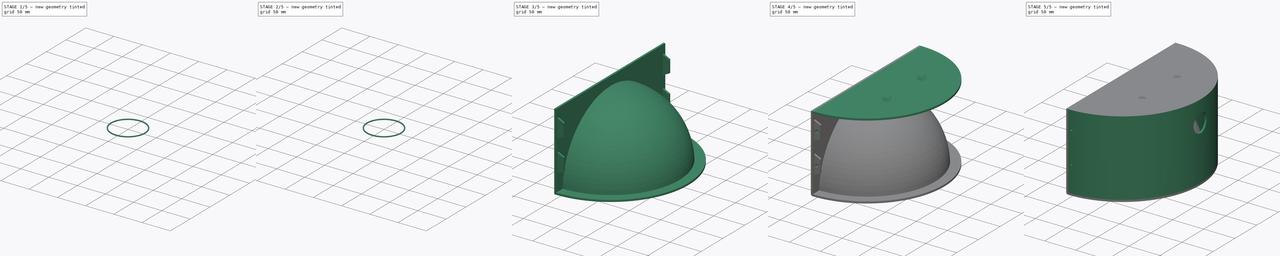
[diagram: build sequence overview — one tinted view per stage of 5, left to right]
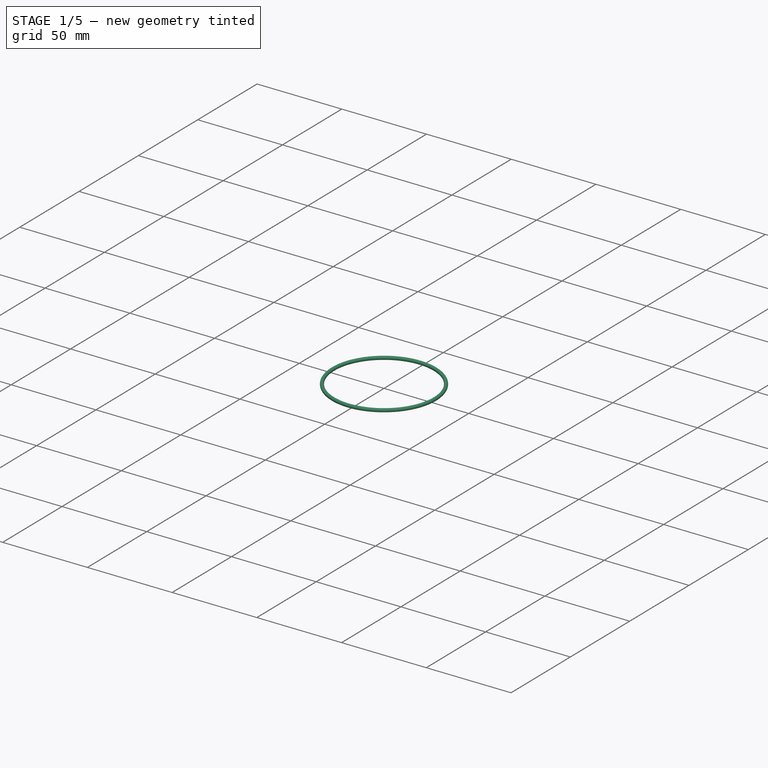
[diagram: stage 1 of 5 — iso view after this stage's code; geometry added in this stage tinted green]
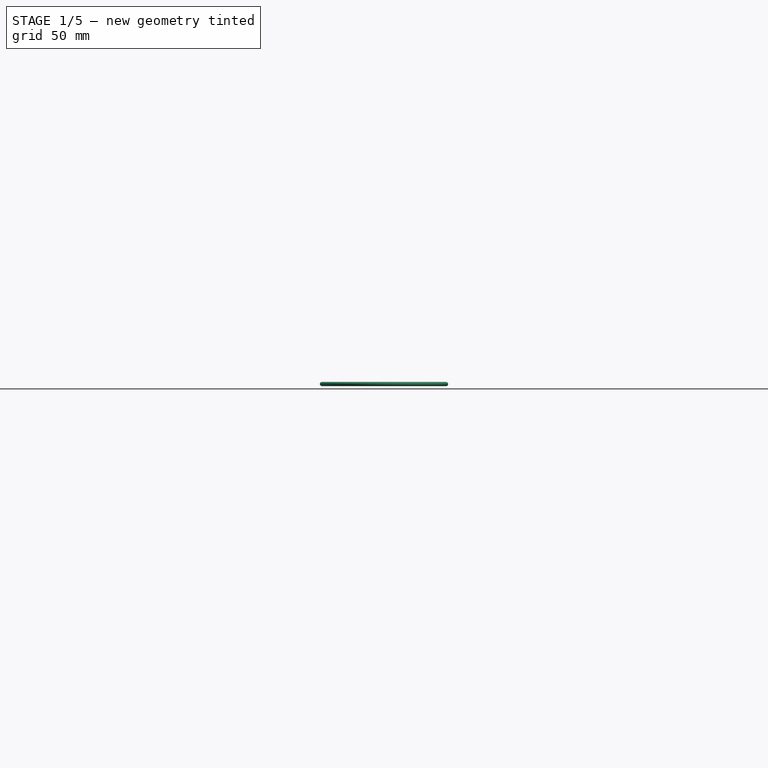
[diagram: stage 1 of 5 — front view after this stage's code; geometry added in this stage tinted green]
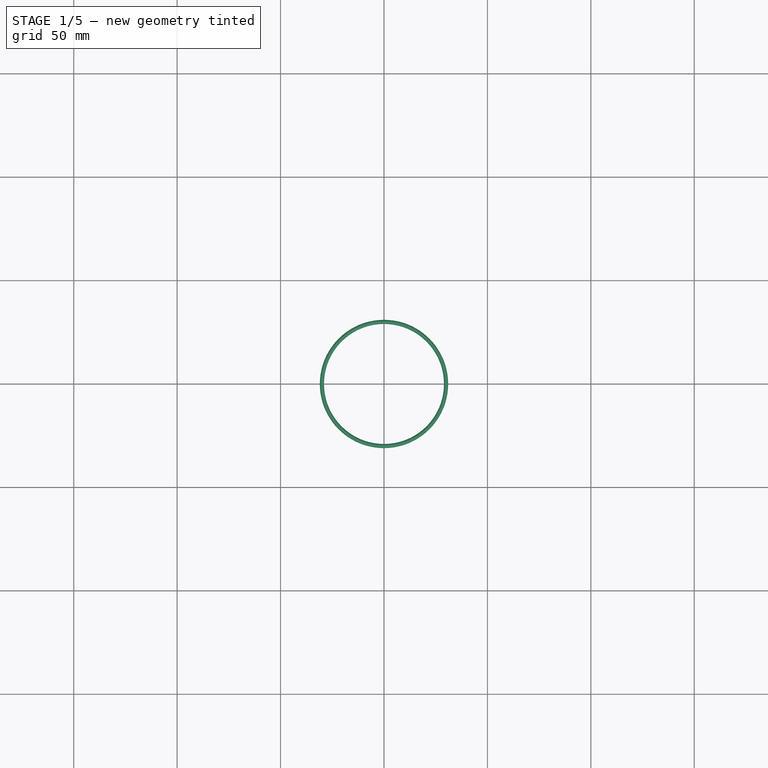
[diagram: stage 1 of 5 — top view after this stage's code; geometry added in this stage tinted green]
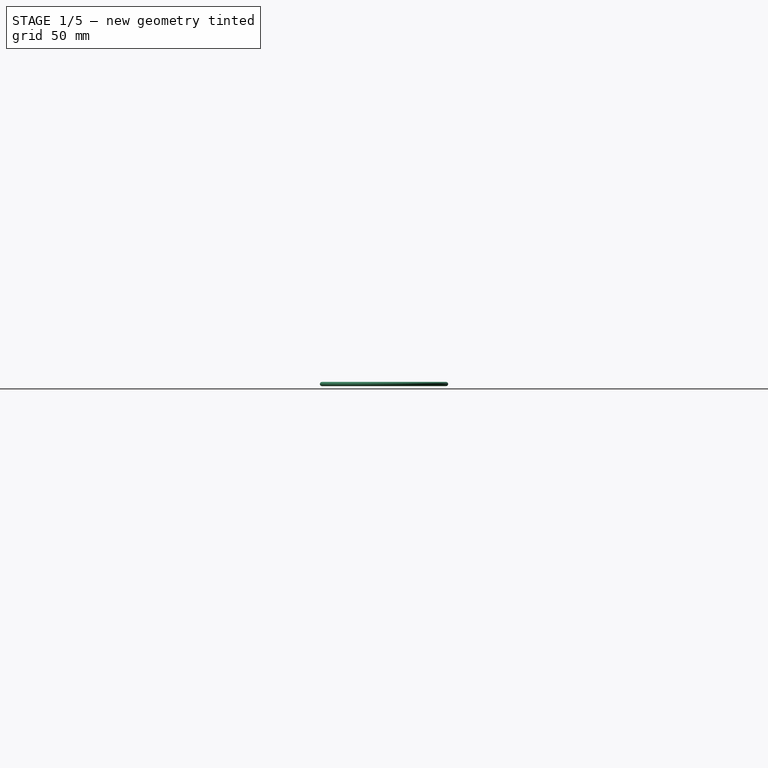
[diagram: stage 1 of 5 — right view after this stage's code; geometry added in this stage tinted green]
FCSTD DOCUMENT  (FreeCAD 0.19R24291 (Git))
Label: tms_v5_with_loops
License: All rights reserved
LicenseURL: http://en.wikipedia.org/wiki/All_rights_reserved
objects: Sketcher::SketchObject×44, PartDesign::Body×18, PartDesign::AdditivePipe×16, PartDesign::Pad×6, PartDesign::Pocket×4, PartDesign::Mirrored×3, PartDesign::Chamfer×2, Part::FeaturePython×2, PartDesign::Fillet×2, PartDesign::Revolution×1, PartDesign::Groove×1, Part::MultiFuse×1, Part::Cut×1
note: 133 computed .brp shape members not serialized (recipe doc carries the construction recipe); baked Part::Feature solids carry a one-line shape summary decoded from their .brp

FEATURE [PartDesign::Body] Body009  label="loop6cm007"
  Group = -> [Sketch037,Sketch036,AdditivePipe007]
  Origin = -> Origin009
  Placement = pos=(75.251,48.3806,74.052) rot=(0.200696,0.329112,0.922717;2.23262rad)
  Tip = -> AdditivePipe007
FEATURE [Sketcher::SketchObject] Sketch038
  FullyConstrained = true
  MapMode = 5
  Placement = pos=(0,0,0) rot=(1,0,0;1.5708rad)
  Support = -> [XZ_Plane010]
  sketch-geometry (1):
    g0: Circle CenterX=30 CenterY=0 CenterZ=0 NormalX=0 NormalY=0 NormalZ=1 AngleXU=0 Radius=1
  constraints (3):
    c: PointOnObject(g0,g-1)
    c: Radius(g0) = 1
    c: DistanceX(g-1,g0) = 30
FEATURE [Sketcher::SketchObject] Sketch039
  FullyConstrained = true
  MapMode = 5
  Support = -> [XY_Plane010]
  sketch-geometry (1):
    g0: Circle CenterX=0 CenterY=0 CenterZ=0 NormalX=0 NormalY=0 NormalZ=1 AngleXU=0 Radius=30
  constraints (2):
    c: Coincident(g0,g-1)
    c: Radius(g0) = 30
FEATURE [PartDesign::AdditivePipe] AdditivePipe008
  AuxilleryCurvelinear = true
  AuxillerySpineTangent = false
  Binormal = (0,0,0)
  Mode = 0
  Placement = pos=(0,0,0) rot=(1,0,0;1.5708rad)
  Profile = -> Sketch038
  Refine = true
  Spine = -> Sketch039 [Edge1]
  SpineTangent = false
  Transformation = 0
  Transition = 0
FEATURE [PartDesign::Body] Body010  label="loop6cm008"
  Group = -> [Sketch039,Sketch038,AdditivePipe008]
  Origin = -> Origin010
  Placement = pos=(87.9903,0.762814,73.1651) rot=(0.258364,0.311684,0.914386;1.73504rad)
  Tip = -> AdditivePipe008
FEATURE [Sketcher::SketchObject] Sketch040
  FullyConstrained = true
  MapMode = 5
  Placement = pos=(0,0,0) rot=(1,0,0;1.5708rad)
  Support = -> [XZ_Plane011]
  sketch-geometry (1):
    g0: Circle CenterX=30 CenterY=0 CenterZ=0 NormalX=0 NormalY=0 NormalZ=1 AngleXU=0 Radius=1
  constraints (3):
    c: PointOnObject(g0,g-1)
    c: Radius(g0) = 1
    c: DistanceX(g-1,g0) = 30
FEATURE [Sketcher::SketchObject] Sketch041
  FullyConstrained = true
  MapMode = 5
  Support = -> [XY_Plane011]
  sketch-geometry (1):
    g0: Circle CenterX=0 CenterY=0 CenterZ=0 NormalX=0 NormalY=0 NormalZ=1 AngleXU=0 Radius=30
  constraints (2):
    c: Coincident(g0,g-1)
    c: Radius(g0) = 30
FEATURE [PartDesign::AdditivePipe] AdditivePipe009
  AuxilleryCurvelinear = true
  AuxillerySpineTangent = false
  Binormal = (0,0,0)
  Mode = 0
  Placement = pos=(0,0,0) rot=(1,0,0;1.5708rad)
  Profile = -> Sketch040
  Refine = true
  Spine = -> Sketch041 [Edge1]
  SpineTangent = false
  Transformation = 0
  Transition = 0
FEATURE [PartDesign::Body] Body011  label="loop6cm009"
  Group = -> [Sketch041,Sketch040,AdditivePipe009]
  Origin = -> Origin011
  Placement = pos=(71.4617,-45.2874,76.0526) rot=(0.593103,0.246322,0.766521;1.1852rad)
  Tip = -> AdditivePipe009
FEATURE [Sketcher::SketchObject] Sketch042
  FullyConstrained = true
  MapMode = 5
  Placement = pos=(0,0,0) rot=(1,0,0;1.5708rad)
  Support = -> [XZ_Plane012]
  sketch-geometry (1):
    g0: Circle CenterX=30 CenterY=0 CenterZ=0 NormalX=0 NormalY=0 NormalZ=1 AngleXU=0 Radius=1
  constraints (3):
    c: PointOnObject(g0,g-1)
    c: Radius(g0) = 1
    c: DistanceX(g-1,g0) = 30
FEATURE [Sketcher::SketchObject] Sketch043
  FullyConstrained = true
  MapMode = 5
  Support = -> [XY_Plane012]
  sketch-geometry (1):
    g0: Circle CenterX=0 CenterY=0 CenterZ=0 NormalX=0 NormalY=0 NormalZ=1 AngleXU=0 Radius=30
  constraints (2):
    c: Coincident(g0,g-1)
    c: Radius(g0) = 30
FEATURE [PartDesign::AdditivePipe] AdditivePipe010
  AuxilleryCurvelinear = true
  AuxillerySpineTangent = false
  Binormal = (0,0,0)
  Mode = 0
  Placement = pos=(0,0,0) rot=(1,0,0;1.5708rad)
  Profile = -> Sketch042
  Refine = true
  Spine = -> Sketch043 [Edge1]
  SpineTangent = false
  Transformation = 0
  Transition = 0
FEATURE [PartDesign::Body] Body012  label="loop6cm010"
  Group = -> [Sketch043,Sketch042,AdditivePipe010]
  Origin = -> Origin012
  Placement = pos=(32.1796,-79.1116,76.3962) rot=(0.997556,0.068685,0.012792;0.779142rad)
  Tip = -> AdditivePipe010
FEATURE [Sketcher::SketchObject] Sketch044
  FullyConstrained = true
  MapMode = 5
  Support = -> [XY_Plane013]
  sketch-geometry (1):
    g0: Circle CenterX=0 CenterY=0 CenterZ=0 NormalX=0 NormalY=0 NormalZ=1 AngleXU=0 Radius=30
  constraints (2):
    c: Coincident(g0,g-1)
    c: Radius(g0) = 30
FEATURE [Sketcher::SketchObject] Sketch045
  FullyConstrained = true
  MapMode = 5
  Placement = pos=(0,0,0) rot=(1,0,0;1.5708rad)
  Support = -> [XZ_Plane013]
  sketch-geometry (1):
    g0: Circle CenterX=30 CenterY=0 CenterZ=0 NormalX=0 NormalY=0 NormalZ=1 AngleXU=0 Radius=1
  constraints (3):
    c: PointOnObject(g0,g-1)
    c: Radius(g0) = 1
    c: DistanceX(g-1,g0) = 30
FEATURE [PartDesign::AdditivePipe] AdditivePipe011
  AuxilleryCurvelinear = true
  AuxillerySpineTangent = false
  Binormal = (0,0,0)
  Mode = 0
  Placement = pos=(0,0,0) rot=(1,0,0;1.5708rad)
  Profile = -> Sketch045
  Refine = true
  Spine = -> Sketch044 [Edge1]
  SpineTangent = false
  Transformation = 0
  Transition = 0
FEATURE [PartDesign::Body] Body013  label="loop6cm011"
  Group = -> [Sketch044,Sketch045,AdditivePipe011]
  Origin = -> Origin013
  Placement = pos=(109.885,0.356796,35.8725) rot=(-0.493623,0.572819,-0.654381;2.06458rad)
  Tip = -> AdditivePipe011
FEATURE [Sketcher::SketchObject] Sketch046
  FullyConstrained = true
  MapMode = 5
  Placement = pos=(0,0,0) rot=(1,0,0;1.5708rad)
  Support = -> [XZ_Plane014]
  sketch-geometry (1):
    g0: Circle CenterX=30 CenterY=0 CenterZ=0 NormalX=0 NormalY=0 NormalZ=1 AngleXU=0 Radius=1
  constraints (3):
    c: PointOnObject(g0,g-1)
    c: Radius(g0) = 1
    c: DistanceX(g-1,g0) = 30
FEATURE [Sketcher::SketchObject] Sketch047
  FullyConstrained = true
  MapMode = 5
  Support = -> [XY_Plane014]
  sketch-geometry (1):
    g0: Circle CenterX=0 CenterY=0 CenterZ=0 NormalX=0 NormalY=0 NormalZ=1 AngleXU=0 Radius=30
  constraints (2):
    c: Coincident(g0,g-1)
    c: Radius(g0) = 30
FEATURE [PartDesign::AdditivePipe] AdditivePipe012
  AuxilleryCurvelinear = true
  AuxillerySpineTangent = false
  Binormal = (0,0,0)
  Mode = 0
  Placement = pos=(0,0,0) rot=(1,0,0;1.5708rad)
  Profile = -> Sketch046
  Refine = true
  Spine = -> Sketch047 [Edge1]
  SpineTangent = false
  Transformation = 0
  Transition = 0
FEATURE [PartDesign::Body] Body014  label="loop6cm012"
  Group = -> [Sketch047,Sketch046,AdditivePipe012]
  Origin = -> Origin014
  Placement = pos=(35.0627,45.2266,98.5489) rot=(-0.254335,-0.145688,-0.95608;1.70873rad)
  Tip = -> AdditivePipe012
FEATURE [Sketcher::SketchObject] Sketch048
  FullyConstrained = true
  MapMode = 5
  Support = -> [XY_Plane015]
  sketch-geometry (1):
    g0: Circle CenterX=0 CenterY=0 CenterZ=0 NormalX=0 NormalY=0 NormalZ=1 AngleXU=0 Radius=30
  constraints (2):
    c: Coincident(g0,g-1)
    c: Radius(g0) = 30
FEATURE [Sketcher::SketchObject] Sketch049
  FullyConstrained = true
  MapMode = 5
  Placement = pos=(0,0,0) rot=(1,0,0;1.5708rad)
  Support = -> [XZ_Plane015]
  sketch-geometry (1):
    g0: Circle CenterX=30 CenterY=0 CenterZ=0 NormalX=0 NormalY=0 NormalZ=1 AngleXU=0 Radius=1
  constraints (3):
    c: PointOnObject(g0,g-1)
    c: Radius(g0) = 1
    c: DistanceX(g-1,g0) = 30
FEATURE [PartDesign::AdditivePipe] AdditivePipe013
  AuxilleryCurvelinear = true
  AuxillerySpineTangent = false
  Binormal = (0,0,0)
  Mode = 0
  Placement = pos=(0,0,0) rot=(1,0,0;1.5708rad)
  Profile = -> Sketch049
  Refine = true
  Spine = -> Sketch048 [Edge1]
  SpineTangent = false
  Transformation = 0
  Transition = 0
FEATURE [PartDesign::Body] Body015  label="loop6cm013"
  Group = -> [Sketch048,Sketch049,AdditivePipe013]
  Origin = -> Origin015
  Placement = pos=(32.2058,-0.0728293,103.961) rot=(0.160201,-0.007157,0.987059;3.11012rad)
  Tip = -> AdditivePipe013
FEATURE [Sketcher::SketchObject] Sketch050
  FullyConstrained = true
  MapMode = 5
  Placement = pos=(0,0,0) rot=(1,0,0;1.5708rad)
  Support = -> [XZ_Plane016]
  sketch-geometry (1):
    g0: Circle CenterX=30 CenterY=0 CenterZ=0 NormalX=0 NormalY=0 NormalZ=1 AngleXU=0 Radius=1
  constraints (3):
    c: PointOnObject(g0,g-1)
    c: Radius(g0) = 1
    c: DistanceX(g-1,g0) = 30
FEATURE [Sketcher::SketchObject] Sketch051
  FullyConstrained = true
  MapMode = 5
  Support = -> [XY_Plane016]
  sketch-geometry (1):
    g0: Circle CenterX=0 CenterY=0 CenterZ=0 NormalX=0 NormalY=0 NormalZ=1 AngleXU=0 Radius=30
  constraints (2):
    c: Coincident(g0,g-1)
    c: Radius(g0) = 30
FEATURE [PartDesign::AdditivePipe] AdditivePipe014
  AuxilleryCurvelinear = true
  AuxillerySpineTangent = false
  Binormal = (0,0,0)
  Mode = 0
  Placement = pos=(0,0,0) rot=(1,0,0;1.5708rad)
  Profile = -> Sketch050
  Refine = true
  Spine = -> Sketch051 [Edge1]
  SpineTangent = false
  Transformation = 0
  Transition = 0
FEATURE [PartDesign::Body] Body016  label="loop6cm014"
  Group = -> [Sketch051,Sketch050,AdditivePipe014]
  Origin = -> Origin016
  Placement = pos=(59.9806,1.60236,95.1515) rot=(0.210387,0.285154,0.935107;1.72044rad)
  Tip = -> AdditivePipe014
FEATURE [Sketcher::SketchObject] Sketch052
  FullyConstrained = true
  MapMode = 5
  Support = -> [XY_Plane017]
  sketch-geometry (1):
    g0: Circle CenterX=0 CenterY=0 CenterZ=0 NormalX=0 NormalY=0 NormalZ=1 AngleXU=0 Radius=30
  constraints (2):
    c: Coincident(g0,g-1)
    c: Radius(g0) = 30
FEATURE [Sketcher::SketchObject] Sketch053
  FullyConstrained = true
  MapMode = 5
  Placement = pos=(0,0,0) rot=(1,0,0;1.5708rad)
  Support = -> [XZ_Plane017]
  sketch-geometry (1):
    g0: Circle CenterX=30 CenterY=0 CenterZ=0 NormalX=0 NormalY=0 NormalZ=1 AngleXU=0 Radius=1
  constraints (3):
    c: PointOnObject(g0,g-1)
    c: Radius(g0) = 1
    c: DistanceX(g-1,g0) = 30
FEATURE [PartDesign::AdditivePipe] AdditivePipe015
  AuxilleryCurvelinear = true
  AuxillerySpineTangent = false
  Binormal = (0,0,0)
  Mode = 0
  Placement = pos=(0,0,0) rot=(1,0,0;1.5708rad)
  Profile = -> Sketch053
  Refine = true
  Spine = -> Sketch052 [Edge1]
  SpineTangent = false
  Transformation = 0
  Transition = 0
FEATURE [PartDesign::Body] Body017  label="loop6cm015"
  Group = -> [Sketch052,Sketch053,AdditivePipe015]
  Origin = -> Origin017
  Placement = pos=(34.4397,-40.4114,100.392) rot=(0.115168,-0.168486,0.978953;3.07949rad)
  Tip = -> AdditivePipe015
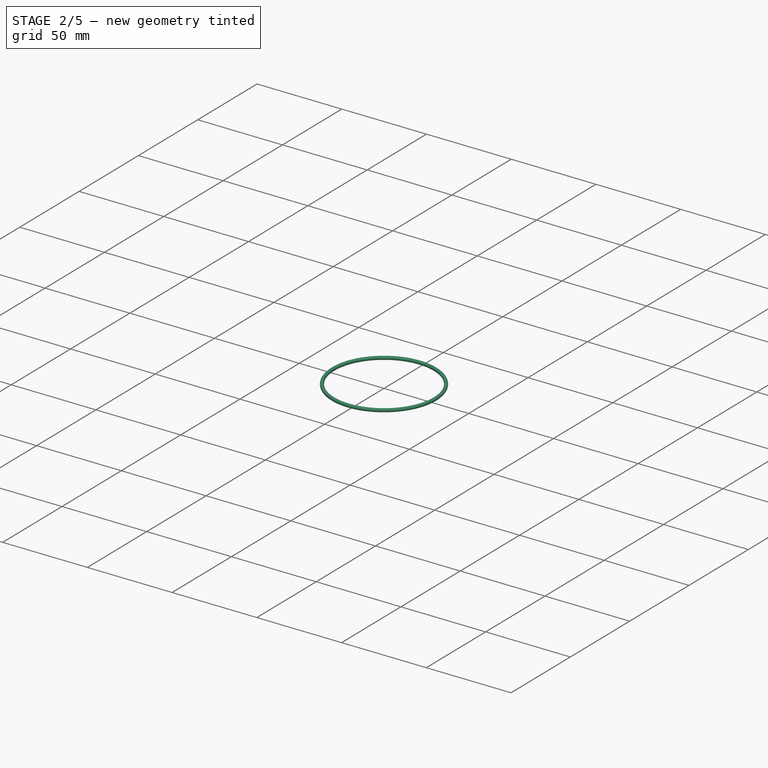
[diagram: stage 2 of 5 — iso view after this stage's code; geometry added in this stage tinted green]
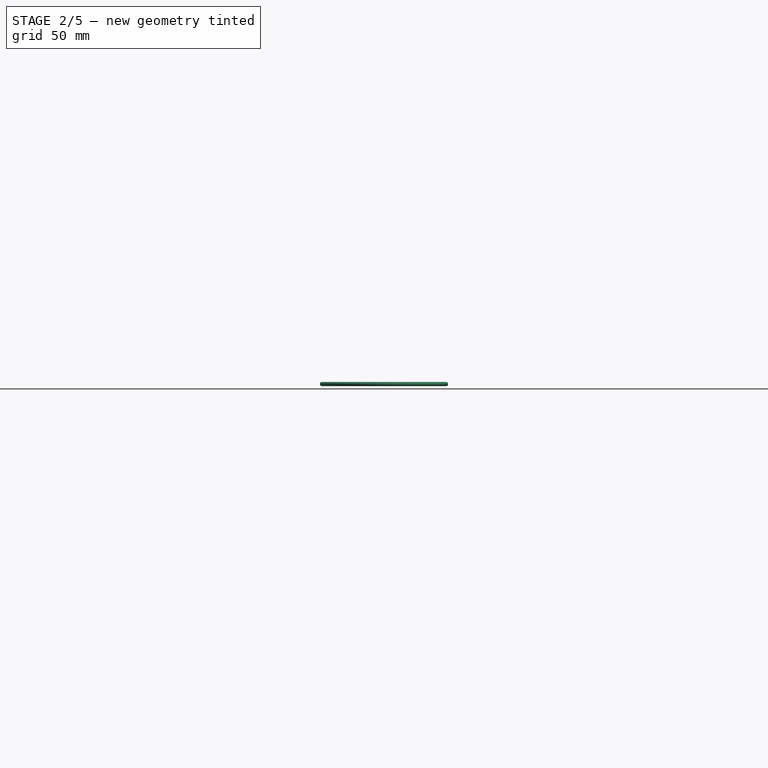
[diagram: stage 2 of 5 — front view after this stage's code; geometry added in this stage tinted green]
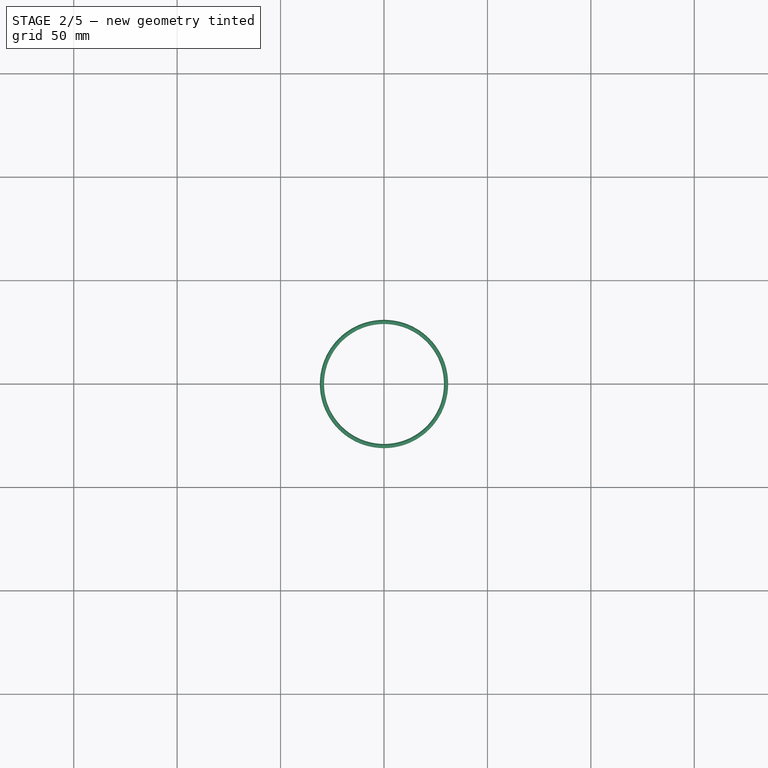
[diagram: stage 2 of 5 — top view after this stage's code; geometry added in this stage tinted green]
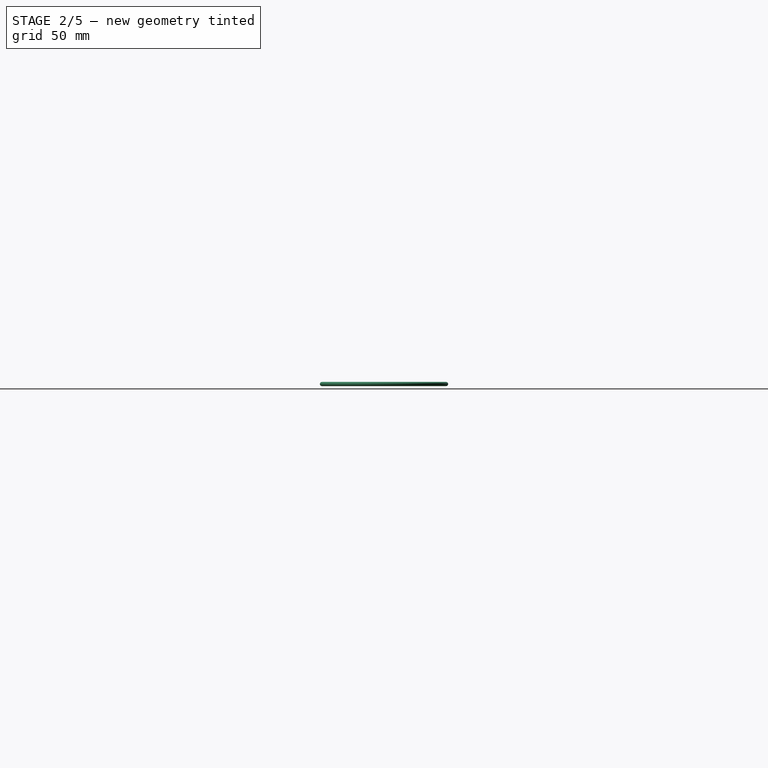
[diagram: stage 2 of 5 — right view after this stage's code; geometry added in this stage tinted green]
FEATURE [PartDesign::Body] Body
  Group = -> [Sketch,Revolution,Pad,Sketch002,Pocket003,Pad008,Sketch012,Sketch009,Groove,Sketch015,Sketch016,Sketch022,Pad009,Mirrored,Pocket,Mirrored003,Fillet,Fillet001]
  Origin = -> Origin
  Tip = -> Fillet001
FEATURE [Sketcher::SketchObject] Sketch001
  FullyConstrained = true
  MapMode = 5
  Placement = pos=(0,0,0) rot=(1,0,0;1.5708rad)
  Support = -> [XZ_Plane002]
  sketch-geometry (1):
    g0: Circle CenterX=30 CenterY=0 CenterZ=0 NormalX=0 NormalY=0 NormalZ=1 AngleXU=0 Radius=1
  constraints (3):
    c: PointOnObject(g0,g-1)
    c: Radius(g0) = 1
    c: DistanceX(g-1,g0) = 30
FEATURE [Sketcher::SketchObject] Sketch023
  FullyConstrained = true
  MapMode = 5
  Support = -> [XY_Plane002]
  sketch-geometry (1):
    g0: Circle CenterX=0 CenterY=0 CenterZ=0 NormalX=0 NormalY=0 NormalZ=1 AngleXU=0 Radius=30
  constraints (2):
    c: Coincident(g0,g-1)
    c: Radius(g0) = 30
FEATURE [PartDesign::AdditivePipe] AdditivePipe
  AuxilleryCurvelinear = true
  AuxillerySpineTangent = false
  Binormal = (0,0,0)
  Mode = 0
  Placement = pos=(0,0,0) rot=(1,0,0;1.5708rad)
  Profile = -> Sketch001
  Refine = true
  Spine = -> Sketch023 [Edge1]
  SpineTangent = false
  Transformation = 0
  Transition = 0
FEATURE [PartDesign::Body] Body002  label="loop6cm"
  Group = -> [Sketch023,Sketch001,AdditivePipe]
  Origin = -> Origin002
  Placement = pos=(38.8727,-99.5431,36.7997) rot=(0.977405,0.167696,0.128678;1.33114rad)
  Tip = -> AdditivePipe
FEATURE [Sketcher::SketchObject] Sketch024
  FullyConstrained = true
  MapMode = 5
  Placement = pos=(0,0,0) rot=(1,0,0;1.5708rad)
  Support = -> [XZ_Plane003]
  sketch-geometry (1):
    g0: Circle CenterX=30 CenterY=0 CenterZ=0 NormalX=0 NormalY=0 NormalZ=1 AngleXU=0 Radius=1
  constraints (3):
    c: PointOnObject(g0,g-1)
    c: Radius(g0) = 1
    c: DistanceX(g-1,g0) = 30
FEATURE [Sketcher::SketchObject] Sketch025
  FullyConstrained = true
  MapMode = 5
  Support = -> [XY_Plane003]
  sketch-geometry (1):
    g0: Circle CenterX=0 CenterY=0 CenterZ=0 NormalX=0 NormalY=0 NormalZ=1 AngleXU=0 Radius=30
  constraints (2):
    c: Coincident(g0,g-1)
    c: Radius(g0) = 30
FEATURE [PartDesign::AdditivePipe] AdditivePipe001
  AuxilleryCurvelinear = true
  AuxillerySpineTangent = false
  Binormal = (0,0,0)
  Mode = 0
  Placement = pos=(0,0,0) rot=(1,0,0;1.5708rad)
  Profile = -> Sketch024
  Refine = true
  Spine = -> Sketch025 [Edge1]
  SpineTangent = false
  Transformation = 0
  Transition = 0
FEATURE [PartDesign::Body] Body003  label="loop6cm001"
  Group = -> [Sketch025,Sketch024,AdditivePipe001]
  Origin = -> Origin003
  Placement = pos=(72.5407,-74.6103,33.3311) rot=(0.775931,0.483235,0.405482;1.46829rad)
  Tip = -> AdditivePipe001
FEATURE [Sketcher::SketchObject] Sketch026
  FullyConstrained = true
  MapMode = 5
  Placement = pos=(0,0,0) rot=(1,0,0;1.5708rad)
  Support = -> [XZ_Plane004]
  sketch-geometry (1):
    g0: Circle CenterX=30 CenterY=0 CenterZ=0 NormalX=0 NormalY=0 NormalZ=1 AngleXU=0 Radius=1
  constraints (3):
    c: PointOnObject(g0,g-1)
    c: Radius(g0) = 1
    c: DistanceX(g-1,g0) = 30
FEATURE [Sketcher::SketchObject] Sketch027
  FullyConstrained = true
  MapMode = 5
  Support = -> [XY_Plane004]
  sketch-geometry (1):
    g0: Circle CenterX=0 CenterY=0 CenterZ=0 NormalX=0 NormalY=0 NormalZ=1 AngleXU=0 Radius=30
  constraints (2):
    c: Coincident(g0,g-1)
    c: Radius(g0) = 30
FEATURE [PartDesign::AdditivePipe] AdditivePipe002
  AuxilleryCurvelinear = true
  AuxillerySpineTangent = false
  Binormal = (0,0,0)
  Mode = 0
  Placement = pos=(0,0,0) rot=(1,0,0;1.5708rad)
  Profile = -> Sketch026
  Refine = true
  Spine = -> Sketch027 [Edge1]
  SpineTangent = false
  Transformation = 0
  Transition = 0
FEATURE [PartDesign::Body] Body004  label="loop6cm002"
  Group = -> [Sketch027,Sketch026,AdditivePipe002]
  Origin = -> Origin004
  Placement = pos=(100.759,-42.0287,37.0938) rot=(0.69683,0.484813,0.528568;1.87143rad)
  Tip = -> AdditivePipe002
FEATURE [Sketcher::SketchObject] Sketch028
  FullyConstrained = true
  MapMode = 5
  Placement = pos=(0,0,0) rot=(1,0,0;1.5708rad)
  Support = -> [XZ_Plane005]
  sketch-geometry (1):
    g0: Circle CenterX=30 CenterY=0 CenterZ=0 NormalX=0 NormalY=0 NormalZ=1 AngleXU=0 Radius=1
  constraints (3):
    c: PointOnObject(g0,g-1)
    c: Radius(g0) = 1
    c: DistanceX(g-1,g0) = 30
FEATURE [Sketcher::SketchObject] Sketch029
  FullyConstrained = true
  MapMode = 5
  Support = -> [XY_Plane005]
  sketch-geometry (1):
    g0: Circle CenterX=0 CenterY=0 CenterZ=0 NormalX=0 NormalY=0 NormalZ=1 AngleXU=0 Radius=30
  constraints (2):
    c: Coincident(g0,g-1)
    c: Radius(g0) = 30
FEATURE [PartDesign::AdditivePipe] AdditivePipe003
  AuxilleryCurvelinear = true
  AuxillerySpineTangent = false
  Binormal = (0,0,0)
  Mode = 0
  Placement = pos=(0,0,0) rot=(1,0,0;1.5708rad)
  Profile = -> Sketch028
  Refine = true
  Spine = -> Sketch029 [Edge1]
  SpineTangent = false
  Transformation = 0
  Transition = 0
FEATURE [PartDesign::Body] Body005  label="loop6cm003"
  Group = -> [Sketch029,Sketch028,AdditivePipe003]
  Origin = -> Origin005
  Placement = pos=(102.85,40.6772,36.528) rot=(0.421346,0.62898,0.653338;2.26592rad)
  Tip = -> AdditivePipe003
FEATURE [Sketcher::SketchObject] Sketch030
  FullyConstrained = true
  MapMode = 5
  Support = -> [XY_Plane006]
  sketch-geometry (1):
    g0: Circle CenterX=0 CenterY=0 CenterZ=0 NormalX=0 NormalY=0 NormalZ=1 AngleXU=0 Radius=30
  constraints (2):
    c: Coincident(g0,g-1)
    c: Radius(g0) = 30
FEATURE [Sketcher::SketchObject] Sketch031
  FullyConstrained = true
  MapMode = 5
  Placement = pos=(0,0,0) rot=(1,0,0;1.5708rad)
  Support = -> [XZ_Plane006]
  sketch-geometry (1):
    g0: Circle CenterX=30 CenterY=0 CenterZ=0 NormalX=0 NormalY=0 NormalZ=1 AngleXU=0 Radius=1
  constraints (3):
    c: PointOnObject(g0,g-1)
    c: Radius(g0) = 1
    c: DistanceX(g-1,g0) = 30
FEATURE [PartDesign::AdditivePipe] AdditivePipe004
  AuxilleryCurvelinear = true
  AuxillerySpineTangent = false
  Binormal = (0,0,0)
  Mode = 0
  Placement = pos=(0,0,0) rot=(1,0,0;1.5708rad)
  Profile = -> Sketch031
  Refine = true
  Spine = -> Sketch030 [Edge1]
  SpineTangent = false
  Transformation = 0
  Transition = 0
FEATURE [PartDesign::Body] Body006  label="loop6cm004"
  Group = -> [Sketch030,Sketch031,AdditivePipe004]
  Origin = -> Origin006
  Placement = pos=(78.6328,79.5767,35.5722) rot=(0.255516,0.677142,0.690065;2.55181rad)
  Tip = -> AdditivePipe004
FEATURE [Sketcher::SketchObject] Sketch032
  FullyConstrained = true
  MapMode = 5
  Support = -> [XY_Plane007]
  sketch-geometry (1):
    g0: Circle CenterX=0 CenterY=0 CenterZ=0 NormalX=0 NormalY=0 NormalZ=1 AngleXU=0 Radius=30
  constraints (2):
    c: Coincident(g0,g-1)
    c: Radius(g0) = 30
FEATURE [Sketcher::SketchObject] Sketch033
  FullyConstrained = true
  MapMode = 5
  Placement = pos=(0,0,0) rot=(1,0,0;1.5708rad)
  Support = -> [XZ_Plane007]
  sketch-geometry (1):
    g0: Circle CenterX=30 CenterY=0 CenterZ=0 NormalX=0 NormalY=0 NormalZ=1 AngleXU=0 Radius=1
  constraints (3):
    c: PointOnObject(g0,g-1)
    c: Radius(g0) = 1
    c: DistanceX(g-1,g0) = 30
FEATURE [PartDesign::AdditivePipe] AdditivePipe005
  AuxilleryCurvelinear = true
  AuxillerySpineTangent = false
  Binormal = (0,0,0)
  Mode = 0
  Placement = pos=(0,0,0) rot=(1,0,0;1.5708rad)
  Profile = -> Sketch033
  Refine = true
  Spine = -> Sketch032 [Edge1]
  SpineTangent = false
  Transformation = 0
  Transition = 0
FEATURE [PartDesign::Body] Body007  label="loop6cm005"
  Group = -> [Sketch032,Sketch033,AdditivePipe005]
  Origin = -> Origin007
  Placement = pos=(39.6345,98.852,35.9282) rot=(0.055553,0.641795,0.764861;2.90444rad)
  Tip = -> AdditivePipe005
FEATURE [Sketcher::SketchObject] Sketch034
  FullyConstrained = true
  MapMode = 5
  Support = -> [XY_Plane008]
  sketch-geometry (1):
    g0: Circle CenterX=0 CenterY=0 CenterZ=0 NormalX=0 NormalY=0 NormalZ=1 AngleXU=0 Radius=30
  constraints (2):
    c: Coincident(g0,g-1)
    c: Radius(g0) = 30
FEATURE [Sketcher::SketchObject] Sketch035
  FullyConstrained = true
  MapMode = 5
  Placement = pos=(0,0,0) rot=(1,0,0;1.5708rad)
  Support = -> [XZ_Plane008]
  sketch-geometry (1):
    g0: Circle CenterX=30 CenterY=0 CenterZ=0 NormalX=0 NormalY=0 NormalZ=1 AngleXU=0 Radius=1
  constraints (3):
    c: PointOnObject(g0,g-1)
    c: Radius(g0) = 1
    c: DistanceX(g-1,g0) = 30
FEATURE [PartDesign::AdditivePipe] AdditivePipe006
  AuxilleryCurvelinear = true
  AuxillerySpineTangent = false
  Binormal = (0,0,0)
  Mode = 0
  Placement = pos=(0,0,0) rot=(1,0,0;1.5708rad)
  Profile = -> Sketch035
  Refine = true
  Spine = -> Sketch034 [Edge1]
  SpineTangent = false
  Transformation = 0
  Transition = 0
FEATURE [PartDesign::Body] Body008  label="loop6cm006"
  Group = -> [Sketch034,Sketch035,AdditivePipe006]
  Origin = -> Origin008
  Placement = pos=(37.1588,77.7537,76.2877) rot=(0.07107,0.382526,0.921207;2.96428rad)
  Tip = -> AdditivePipe006
FEATURE [Sketcher::SketchObject] Sketch036
  FullyConstrained = true
  MapMode = 5
  Placement = pos=(0,0,0) rot=(1,0,0;1.5708rad)
  Support = -> [XZ_Plane009]
  sketch-geometry (1):
    g0: Circle CenterX=30 CenterY=0 CenterZ=0 NormalX=0 NormalY=0 NormalZ=1 AngleXU=0 Radius=1
  constraints (3):
    c: PointOnObject(g0,g-1)
    c: Radius(g0) = 1
    c: DistanceX(g-1,g0) = 30
FEATURE [Sketcher::SketchObject] Sketch037
  FullyConstrained = true
  MapMode = 5
  Support = -> [XY_Plane009]
  sketch-geometry (1):
    g0: Circle CenterX=0 CenterY=0 CenterZ=0 NormalX=0 NormalY=0 NormalZ=1 AngleXU=0 Radius=30
  constraints (2):
    c: Coincident(g0,g-1)
    c: Radius(g0) = 30
FEATURE [PartDesign::AdditivePipe] AdditivePipe007
  AuxilleryCurvelinear = true
  AuxillerySpineTangent = false
  Binormal = (0,0,0)
  Mode = 0
  Placement = pos=(0,0,0) rot=(1,0,0;1.5708rad)
  Profile = -> Sketch036
  Refine = true
  Spine = -> Sketch037 [Edge1]
  SpineTangent = false
  Transformation = 0
  Transition = 0
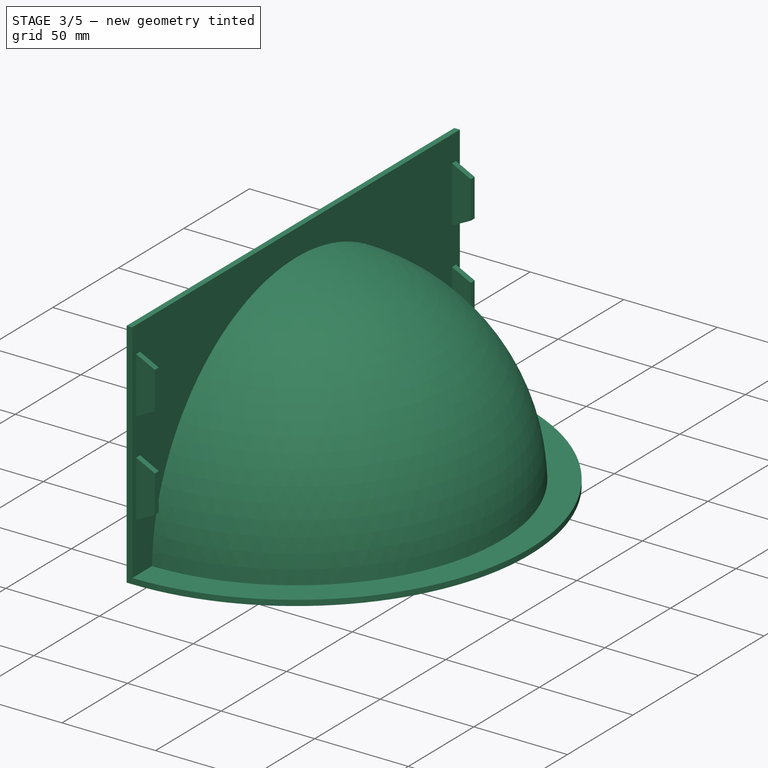
[diagram: stage 3 of 5 — iso view after this stage's code; geometry added in this stage tinted green]
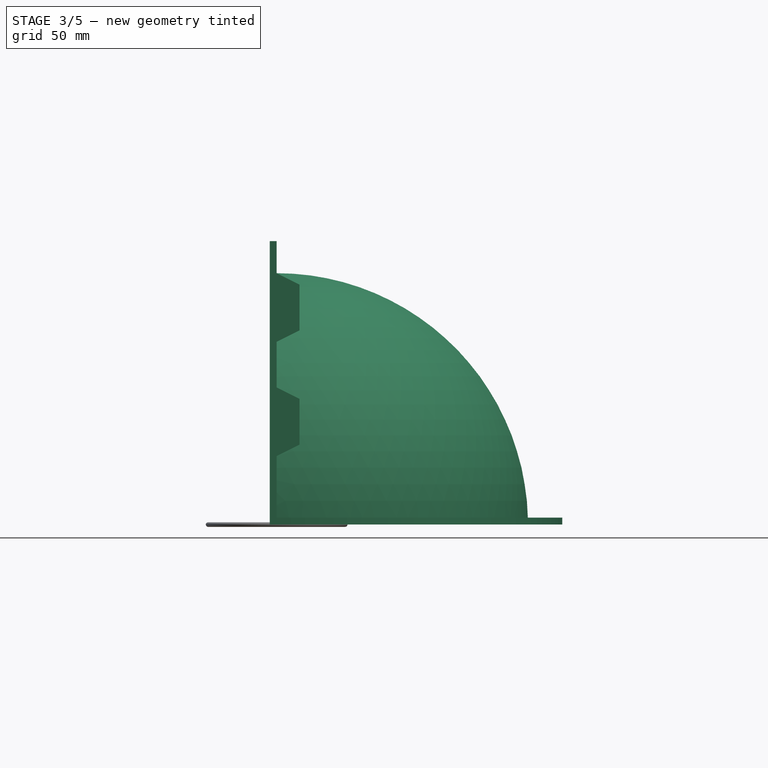
[diagram: stage 3 of 5 — front view after this stage's code; geometry added in this stage tinted green]
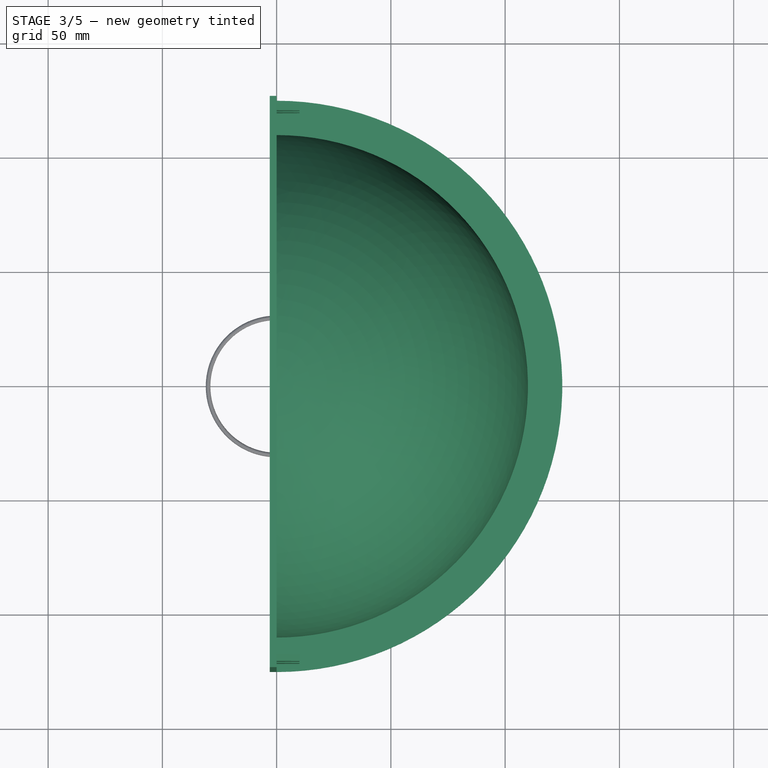
[diagram: stage 3 of 5 — top view after this stage's code; geometry added in this stage tinted green]
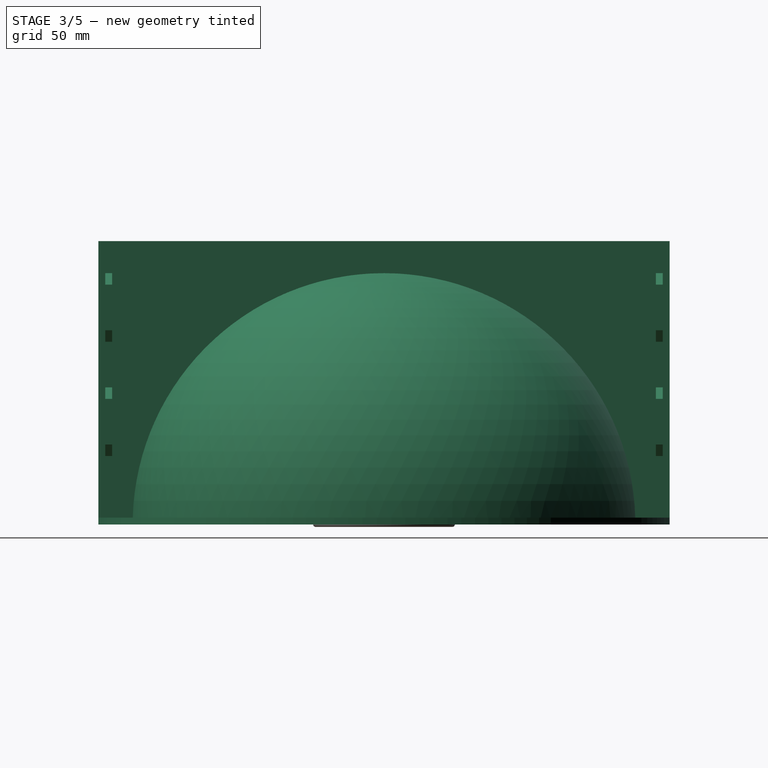
[diagram: stage 3 of 5 — right view after this stage's code; geometry added in this stage tinted green]
FEATURE [Sketcher::SketchObject] Sketch
  FullyConstrained = false
  MapMode = 5
  Placement = pos=(0,0,0) rot=(1,0,0;1.5708rad)
  Support = -> [XZ_Plane]
  sketch-geometry (4):
    g0: ArcOfCircle CenterX=0 CenterY=0 CenterZ=0 NormalX=0 NormalY=0 NormalZ=1 AngleXU=0 Radius=110 StartAngle=0 EndAngle=1.5708
    g1: ArcOfCircle CenterX=0 CenterY=0 CenterZ=0 NormalX=0 NormalY=0 NormalZ=1 AngleXU=0 Radius=107 StartAngle=0.00209071 EndAngle=1.5708
    g2: LineSegment StartX=6.7e-15 StartY=110 StartZ=0 EndX=6.6e-15 EndY=107 EndZ=0
    g3: LineSegment StartX=107 StartY=0.223706 StartZ=0 EndX=110 EndY=0 EndZ=0
  constraints (11):
    c: Coincident(g0,g-1)
    c: PointOnObject(g0,g-1)
    c: PointOnObject(g0,g-2)
    c: Radius(g0) = 110
    c: Coincident(g1,g0)
    c: PointOnObject(g1,g-2)
    c: Radius(g1) = 107
    c: Coincident(g2,g0)
    c: Coincident(g2,g1)
    c: Coincident(g3,g1)
    c: Coincident(g3,g0)
FEATURE [PartDesign::Revolution] Revolution
  Angle = 180
  Axis = (0,-2e-16,1)
  Base = (0,0,0)
  Midplane = true
  Placement = pos=(0,0,0) rot=(1,0,0;1.5708rad)
  Profile = -> Sketch
  ReferenceAxis = -> Sketch [V_Axis]
  Refine = true
  Reversed = true
FEATURE [Sketcher::SketchObject] Sketch002
  FullyConstrained = true
  MapMode = 5
  Support = -> [XY_Plane]
  sketch-geometry (4):
    g0: LineSegment StartX=-3 StartY=-125 StartZ=0 EndX=-2.31e-14 EndY=-125 EndZ=0
    g1: ArcOfCircle CenterX=0 CenterY=0 CenterZ=0 NormalX=0 NormalY=0 NormalZ=1 AngleXU=0 Radius=125 StartAngle=4.71239 EndAngle=7.85398
    g2: LineSegment StartX=3.83e-14 StartY=125 StartZ=0 EndX=-3 EndY=125 EndZ=0
    g3: LineSegment StartX=-3 StartY=125 StartZ=0 EndX=-3 EndY=-125 EndZ=0
  constraints (11):
    c: PointOnObject(g0,g-2)
    c: Tangent(g0,g1) = -1.5708
    c: PointOnObject(g1,g-2)
    c: Coincident(g1,g2)
    c: Horizontal(g2)
    c: Coincident(g2,g3)
    c: Coincident(g3,g0)
    c: Vertical(g3)
    c: Coincident(g1,g-1)
    c: DistanceY(g3,g3) = 250
    c: DistanceX(g0,g0) = 3
FEATURE [PartDesign::Pad] Pad  label="Pad_base"
  BaseFeature = -> Revolution
  Direction = (1,1,1)
  Length = 3
  Length2 = 100
  Placement = pos=(0,0,0) rot=(1,0,0;1.5708rad)
  Profile = -> Sketch002
  Refine = true
  Type = 0
FEATURE [Sketcher::SketchObject] Sketch009
  FullyConstrained = true
  MapMode = 5
  Support = -> [XY_Plane]
  sketch-geometry (4):
    g0: LineSegment StartX=107 StartY=-2.62e-14 StartZ=0 EndX=-200 EndY=-2.62e-14 EndZ=0
    g1: LineSegment StartX=-200 StartY=-2.62e-14 StartZ=0 EndX=-200 EndY=-107 EndZ=0
    g2: LineSegment StartX=-200 StartY=-107 StartZ=0 EndX=1.705e-13 EndY=-107 EndZ=0
    g3: ArcOfCircle CenterX=0 CenterY=0 CenterZ=0 NormalX=0 NormalY=0 NormalZ=1 AngleXU=0 Radius=107 StartAngle=4.71239 EndAngle=6.28319
  constraints (12):
    c: PointOnObject(g0,g-1)
    c: Horizontal(g0)
    c: Coincident(g0,g1)
    c: Vertical(g1)
    c: Coincident(g1,g2)
    c: Horizontal(g2)
    c: Tangent(g2,g3) = -1.5708
    c: Coincident(g3,g0)
    c: DistanceY(g1,g1) = 107
    c: PointOnObject(g2,g-2)
    c: PointOnObject(g3,g-1)
    c: DistanceX(g2,g2) = 200
FEATURE [Sketcher::SketchObject] Sketch012
  FullyConstrained = true
  MapMode = 5
  Placement = pos=(0,0,0) rot=(0.57735,0.57735,0.57735;2.0944rad)
  Support = -> [YZ_Plane]
  sketch-geometry (2):
    g0: ArcOfCircle CenterX=0 CenterY=0 CenterZ=0 NormalX=0 NormalY=0 NormalZ=1 AngleXU=0 Radius=107 StartAngle=0 EndAngle=3.14159
    g1: LineSegment StartX=107 StartY=0 StartZ=0 EndX=-107 EndY=-5.13534e-11 EndZ=0
  constraints (6):
    c: Coincident(g0,g-1)
    c: PointOnObject(g0,g-1)
    c: PointOnObject(g0,g-1)
    c: Radius(g0) = 107
    c: Coincident(g1,g0)
    c: Coincident(g1,g0)
FEATURE [PartDesign::Pocket] Pocket003
  BaseFeature = -> Pad
  Length = 150
  Length2 = 100
  Placement = pos=(0,0,0) rot=(1,0,0;1.5708rad)
  Profile = -> Sketch012
  Refine = true
  Type = 0
FEATURE [Sketcher::SketchObject] Sketch022
  FullyConstrained = true
  MapMode = 5
  Placement = pos=(0,0,0) rot=(0.57735,0.57735,0.57735;2.0944rad)
  Support = -> [YZ_Plane]
  sketch-geometry (4):
    g0: LineSegment StartX=-125 StartY=124 StartZ=0 EndX=125 EndY=124 EndZ=0
    g1: LineSegment StartX=125 StartY=124 StartZ=0 EndX=125 EndY=0 EndZ=0
    g2: LineSegment StartX=125 StartY=0 StartZ=0 EndX=-125 EndY=0 EndZ=0
    g3: LineSegment StartX=-125 StartY=0 StartZ=0 EndX=-125 EndY=124 EndZ=0
  constraints (11):
    c: Coincident(g0,g1)
    c: Coincident(g1,g2)
    c: Coincident(g2,g3)
    c: Coincident(g3,g0)
    c: Horizontal(g2)
    c: Vertical(g1)
    c: Vertical(g3)
    c: PointOnObject(g1,g-1)
    c: Symmetric(g0,g0,g-2)
    c: DistanceX(g0,g0) = 250
    c: DistanceY(g1,g1) = 124
FEATURE [PartDesign::Pad] Pad008
  BaseFeature = -> Pocket003
  Direction = (1,1,1)
  Length = 3
  Length2 = 100
  Placement = pos=(0,0,0) rot=(1,0,0;1.5708rad)
  Profile = -> Sketch022
  Refine = true
  Reversed = true
  Type = 0
FEATURE [PartDesign::Groove] Groove
  Angle = 360
  Axis = (1,0,0)
  Base = (0,0,0)
  BaseFeature = -> Pad008
  Placement = pos=(0,0,0) rot=(1,0,0;1.5708rad)
  Profile = -> Sketch009
  ReferenceAxis = -> X_Axis
  Refine = true
FEATURE [PartDesign::Pad] Pad009
  BaseFeature = -> Groove
  Direction = (1,1,1)
  Length = 3
  Length2 = 100
  Placement = pos=(0,0,0) rot=(1,0,0;1.5708rad)
  Profile = -> Sketch015
  Refine = true
  Type = 0
FEATURE [PartDesign::Mirrored] Mirrored
  BaseFeature = -> Pad009
  MirrorPlane = -> XZ_Plane
  Originals = -> [Pad009]
  Placement = pos=(0,0,0) rot=(1,0,0;1.5708rad)
  Refine = true
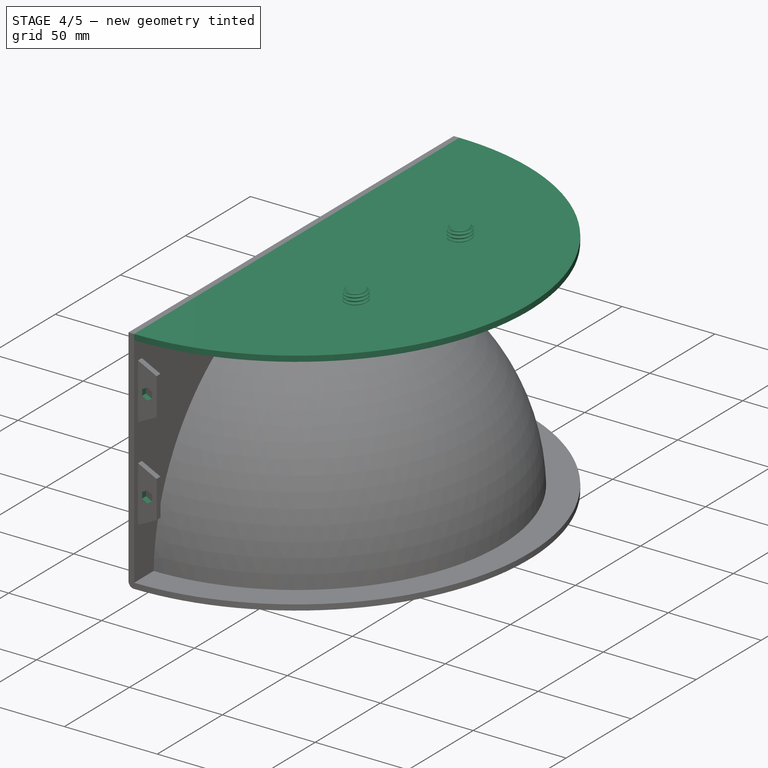
[diagram: stage 4 of 5 — iso view after this stage's code; geometry added in this stage tinted green]
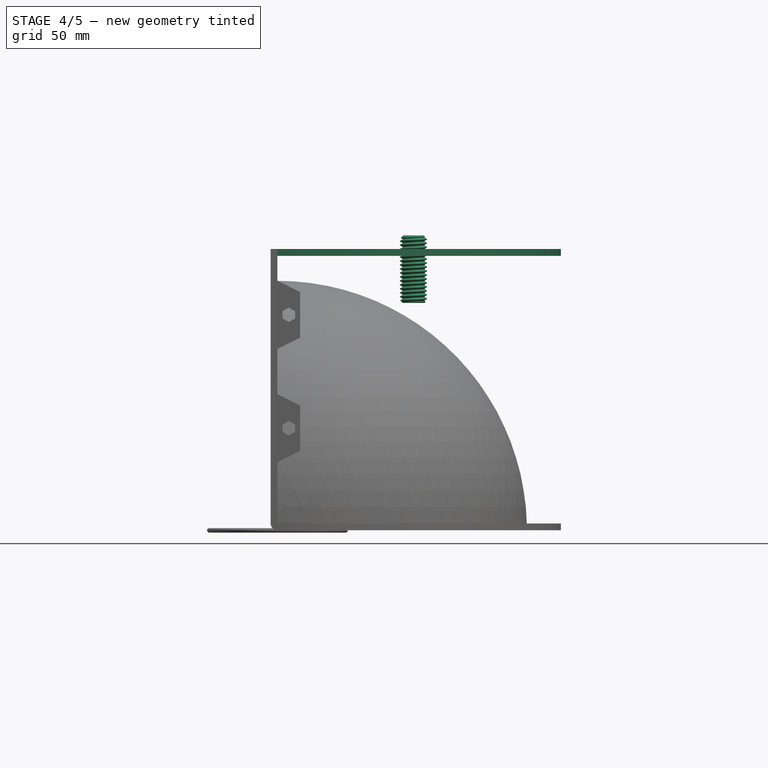
[diagram: stage 4 of 5 — front view after this stage's code; geometry added in this stage tinted green]
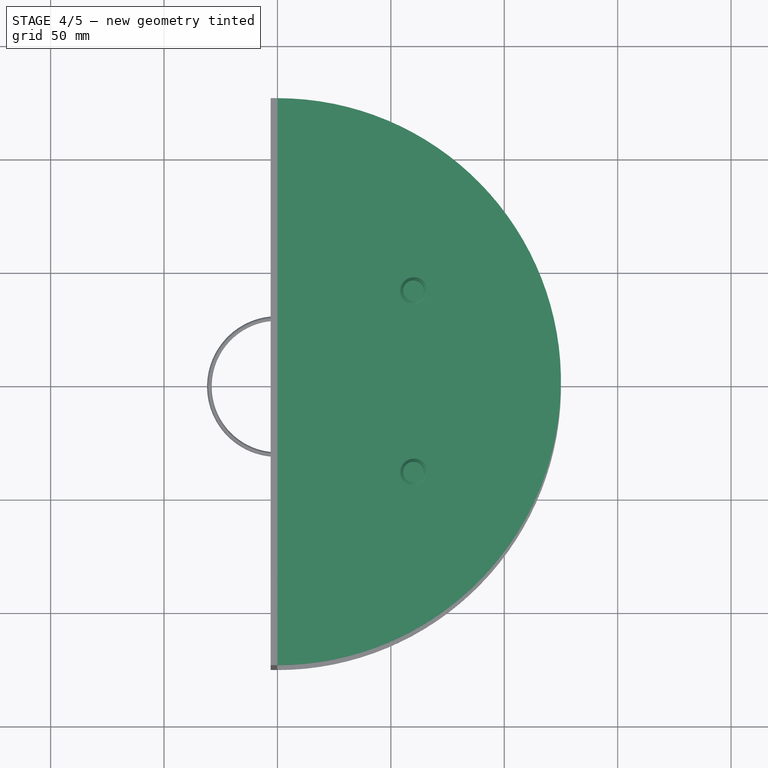
[diagram: stage 4 of 5 — top view after this stage's code; geometry added in this stage tinted green]
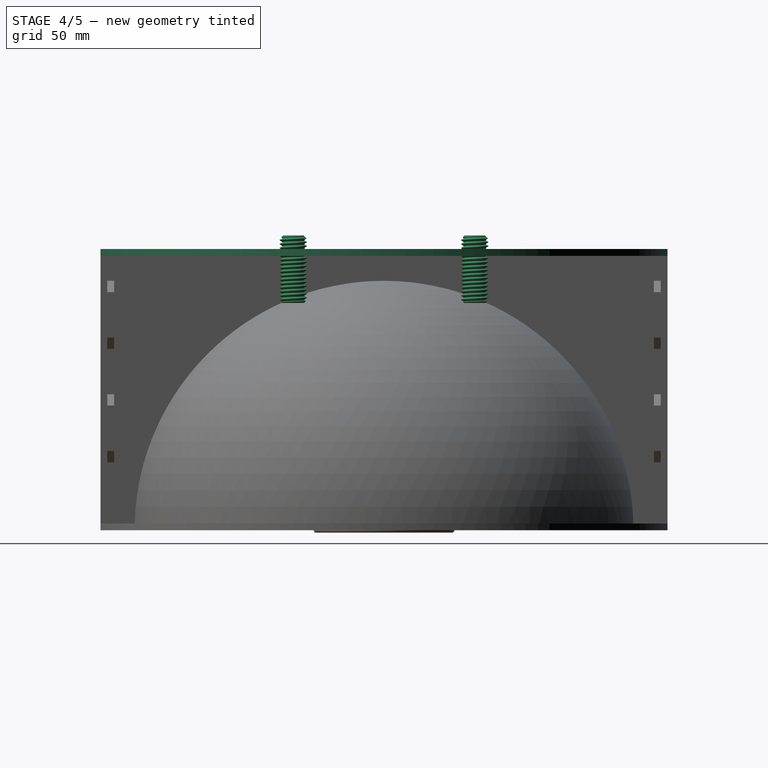
[diagram: stage 4 of 5 — right view after this stage's code; geometry added in this stage tinted green]
FEATURE [Sketcher::SketchObject] Sketch015
  AttachmentOffset = pos=(0,0,119) rot=(0,0,1;0rad)
  FullyConstrained = true
  MapMode = 5
  Placement = pos=(0,-119,-2.64e-14) rot=(1,0,0;1.5708rad)
  Support = -> [XZ_Plane]
  sketch-geometry (12):
    g0: LineSegment StartX=0 StartY=110 StartZ=0 EndX=10 EndY=105 EndZ=0
    g1: LineSegment StartX=10 StartY=105 StartZ=0 EndX=10 EndY=85 EndZ=0
    g2: LineSegment StartX=10 StartY=85 StartZ=0 EndX=0 EndY=80 EndZ=0
    g3: LineSegment StartX=0 StartY=60 StartZ=0 EndX=10 EndY=55 EndZ=0
    g4: LineSegment StartX=10 StartY=55 StartZ=0 EndX=10 EndY=35 EndZ=0
    g5: LineSegment StartX=10 StartY=35 StartZ=0 EndX=0 EndY=30 EndZ=0
    g6: LineSegment StartX=0 StartY=60 StartZ=0 EndX=-3 EndY=60 EndZ=0
    g7: LineSegment StartX=-3 StartY=60 StartZ=0 EndX=-3 EndY=30 EndZ=0
    g8: LineSegment StartX=-3 StartY=30 StartZ=0 EndX=0 EndY=30 EndZ=0
    g9: LineSegment StartX=0 StartY=80 StartZ=0 EndX=-3 EndY=80 EndZ=0
    g10: LineSegment StartX=-3 StartY=80 StartZ=0 EndX=-3 EndY=110 EndZ=0
    g11: LineSegment StartX=-3 StartY=110 StartZ=0 EndX=0 EndY=110 EndZ=0
  constraints (36):
    c: Coincident(g0,g1)
    c: Coincident(g1,g2)
    c: PointOnObject(g3,g-2)
    c: Coincident(g3,g4)
    c: Vertical(g4)
    c: Coincident(g4,g5)
    c: Vertical(g1)
    c: PointOnObject(g0,g-2)
    c: DistanceY(g1,g1) = 20
    c: DistanceY(g2,g0) = 30
    c: DistanceY(g5,g3) = 30
    c: DistanceY(g4,g4) = 20
    c: DistanceX(g-1,g4) = 10
    c: DistanceX(g2,g1) = 10
    c: DistanceY(g0,g0) = 5
    c: DistanceY(g3,g3) = 5
    c: DistanceY(g-1,g5) = 30
    c: DistanceY(g2) = 80
    c: Coincident(g3,g6)
    c: Horizontal(g6)
    c: Coincident(g6,g7)
    c: Vertical(g7)
    c: Coincident(g7,g8)
    c: Coincident(g8,g5)
    c: Horizontal(g8)
    c: Coincident(g2,g9)
    c: Horizontal(g9)
    c: Coincident(g9,g10)
    c: Vertical(g10)
    c: Coincident(g10,g11)
    c: Coincident(g11,g0)
    c: Horizontal(g11)
    c: PointOnObject(g5,g-2)
    c: DistanceX(g8,g8) = 3
    c: PointOnObject(g2,g-2)
    c: DistanceX(g9,g9) = 3
FEATURE [Sketcher::SketchObject] Sketch016
  AttachmentOffset = pos=(0,0,119) rot=(0,0,1;0rad)
  ExternalGeometry = -> [Sketch015]
  FullyConstrained = true
  MapMode = 5
  Placement = pos=(0,-119,-2.64e-14) rot=(1,0,0;1.5708rad)
  Support = -> [XZ_Plane]
  sketch-geometry (14):
    g0: LineSegment StartX=7.77128 StartY=93.4 StartZ=0 EndX=7.77128 EndY=96.6 EndZ=0
    g1: LineSegment StartX=7.77128 StartY=96.6 StartZ=0 EndX=5 EndY=98.2 EndZ=0
    g2: LineSegment StartX=5 StartY=98.2 StartZ=0 EndX=2.22872 EndY=96.6 EndZ=0
    g3: LineSegment StartX=2.22872 StartY=96.6 StartZ=0 EndX=2.22872 EndY=93.4 EndZ=0
    g4: LineSegment StartX=2.22872 StartY=93.4 StartZ=0 EndX=5 EndY=91.8 EndZ=0
    g5: LineSegment StartX=5 StartY=91.8 StartZ=0 EndX=7.77128 EndY=93.4 EndZ=0
    g6: Circle CenterX=5 CenterY=95 CenterZ=0 NormalX=0 NormalY=0 NormalZ=1 AngleXU=0 Radius=3.2
    g7: LineSegment StartX=7.77128 StartY=46.6 StartZ=0 EndX=5 EndY=48.2 EndZ=0
    g8: LineSegment StartX=5 StartY=48.2 StartZ=0 EndX=2.22872 EndY=46.6 EndZ=0
    g9: LineSegment StartX=2.22872 StartY=46.6 StartZ=0 EndX=2.22872 EndY=43.4 EndZ=0
    g10: LineSegment StartX=2.22872 StartY=43.4 StartZ=0 EndX=5 EndY=41.8 EndZ=0
    g11: LineSegment StartX=5 StartY=41.8 StartZ=0 EndX=7.77128 EndY=43.4 EndZ=0
    g12: LineSegment StartX=7.77128 StartY=43.4 StartZ=0 EndX=7.77128 EndY=46.6 EndZ=0
    g13: Circle CenterX=5 CenterY=45 CenterZ=0 NormalX=0 NormalY=0 NormalZ=1 AngleXU=0 Radius=3.2
  constraints (34):
    c: Coincident(g0,g1)
    c: Coincident(g1,g2)
    c: Coincident(g2,g3)
    c: Coincident(g3,g4)
    c: Coincident(g4,g5)
    c: Coincident(g5,g0)
    c: Equal(g0, g1-g5) x5
    c: PointOnObject(g0,g6)
    c: PointOnObject(g1,g6)
    c: PointOnObject(g2,g6)
    c: PointOnObject(g3,g6)
    c: PointOnObject(g4,g6)
    c: PointOnObject(g5,g6)
    c: Radius(g6) = 3.2
    c: Vertical(g3)
    c: Coincident(g7,g8)
    c: Coincident(g8,g9)
    c: Coincident(g9,g10)
    c: Coincident(g10,g11)
    c: Coincident(g11,g12)
    c: Coincident(g12,g7)
    c: Equal(g7, g8-g12) x5
    c: PointOnObject(g7,g13)
    c: PointOnObject(g8,g13)
    c: PointOnObject(g9,g13)
    c: PointOnObject(g10,g13)
    c: PointOnObject(g11,g13)
    c: PointOnObject(g12,g13)
    c: Radius(g13) = 3.2
    c: Vertical(g9)
    c: DistanceX(g6,g-3) = 5
    c: DistanceX(g13,g-4) = 5
    c: DistanceY(g-3,g6) = 10
    c: DistanceY(g-4,g13) = 10
FEATURE [Sketcher::SketchObject] Sketch017
  AttachmentOffset = pos=(0,0,124) rot=(0,0,1;0rad)
  FullyConstrained = false
  MapMode = 5
  Placement = pos=(0,0,124) rot=(0,0,1;0rad)
  Support = -> [XY_Plane001]
  sketch-geometry (2):
    g0: ArcOfCircle CenterX=0 CenterY=0 CenterZ=0 NormalX=0 NormalY=0 NormalZ=1 AngleXU=0 Radius=125 StartAngle=4.71239 EndAngle=7.85398
    g1: LineSegment StartX=3.83e-14 StartY=125 StartZ=0 EndX=-2.3e-14 EndY=-125 EndZ=0
  constraints (5):
    c: PointOnObject(g0,g-2)
    c: PointOnObject(g0,g-2)
    c: Radius(g0) = 125
    c: Coincident(g1,g0)
    c: Coincident(g1,g0)
FEATURE [PartDesign::Pad] Pad005  label="Pad_top_cover"
  Direction = (1,1,1)
  Length = 3
  Length2 = 100
  Profile = -> Sketch017
  Refine = true
  Reversed = true
  Type = 0
FEATURE [PartDesign::Body] Body001  label="Cover"
  Group = -> [Sketch017,Pad005,Sketch018,Pad006,Sketch019,Pocket006,Mirrored002,Chamfer,Sketch021,Pocket008,Chamfer001,Sketch020,Pad007]
  Origin = -> Origin001
  Tip = -> Pad007
FEATURE [Part::FeaturePython] ThreadedRod  label="M12x30.0-ThreadedRod"  # Fasteners workbench fastener (typed FeaturePython)
  Placement = pos=(60,40,130) rot=(0,0,1;0rad)
  diameter = 11
  invert = false
  length = 30
  matchOuter = true
  offset = 0
  thread = true
FEATURE [Part::FeaturePython] ThreadedRod001  label="M12x30.0-ThreadedRod001"  # Fasteners workbench fastener (typed FeaturePython)
  Placement = pos=(60,-40,130) rot=(0,0,1;0rad)
  diameter = 11
  invert = false
  length = 30
  matchOuter = true
  offset = 0
  thread = true
FEATURE [PartDesign::Pocket] Pocket
  BaseFeature = -> Mirrored
  Length = 5
  Length2 = 100
  Placement = pos=(0,0,0) rot=(1,0,0;1.5708rad)
  Profile = -> Sketch016
  Refine = true
  Reversed = true
  Type = 0
FEATURE [PartDesign::Mirrored] Mirrored003
  BaseFeature = -> Pocket
  MirrorPlane = -> XZ_Plane
  Originals = -> [Pocket]
  Placement = pos=(0,0,0) rot=(1,0,0;1.5708rad)
  Refine = true
FEATURE [Part::MultiFuse] Fusion
  Refine = true
  Shapes = -> [ThreadedRod,ThreadedRod001]
FEATURE [PartDesign::Fillet] Fillet
  Base = -> Mirrored003 [Edge119]
  BaseFeature = -> Mirrored003
  Placement = pos=(0,0,0) rot=(1,0,0;1.5708rad)
  Radius = 2
  Refine = true
  SupportTransform = false
FEATURE [PartDesign::Fillet] Fillet001
  Base = -> Fillet [Edge11]
  BaseFeature = -> Fillet
  Placement = pos=(0,0,0) rot=(1,0,0;1.5708rad)
  Radius = 3
  Refine = true
  SupportTransform = false
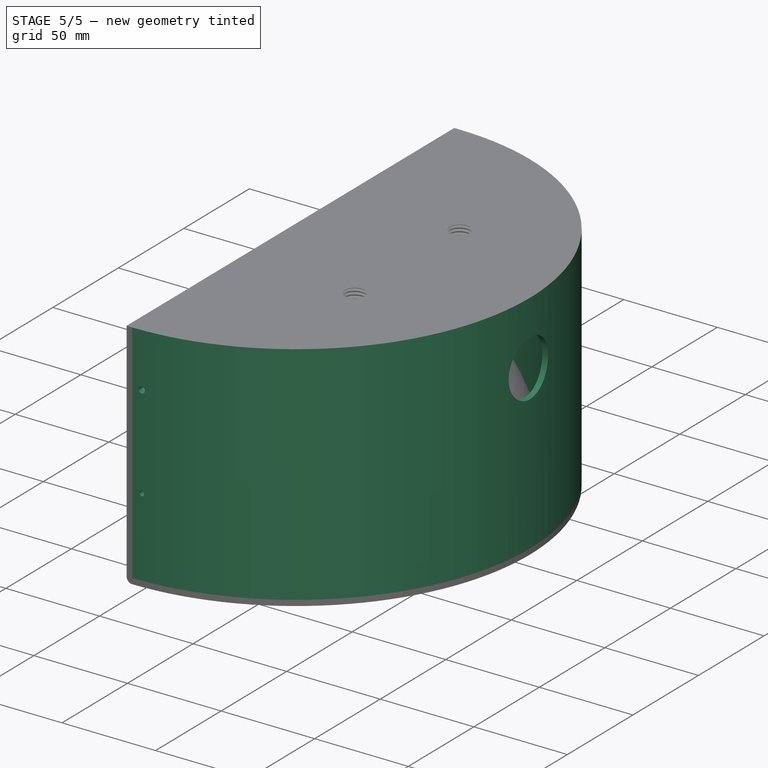
[diagram: stage 5 of 5 — iso view after this stage's code; geometry added in this stage tinted green]
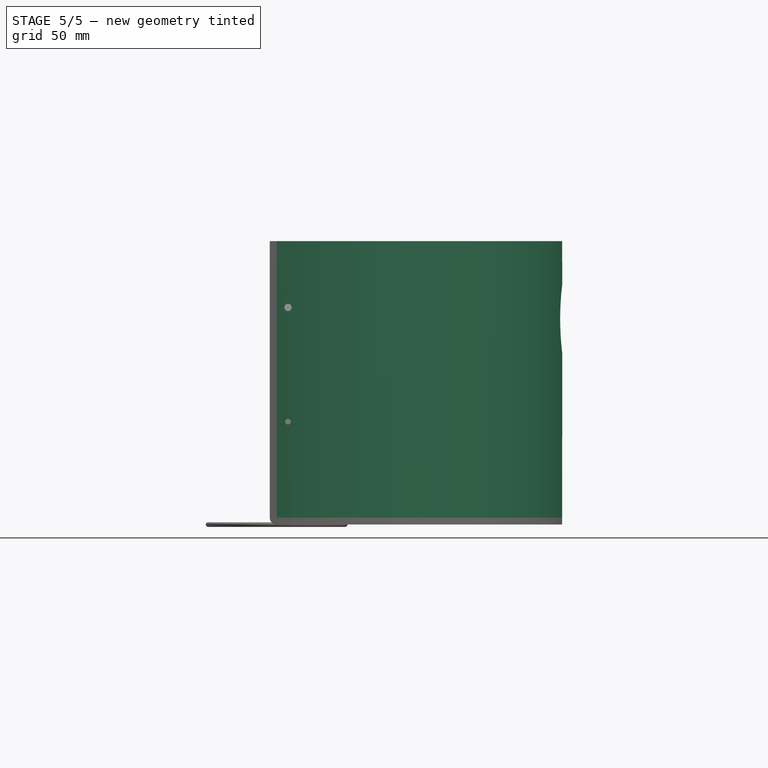
[diagram: stage 5 of 5 — front view after this stage's code; geometry added in this stage tinted green]
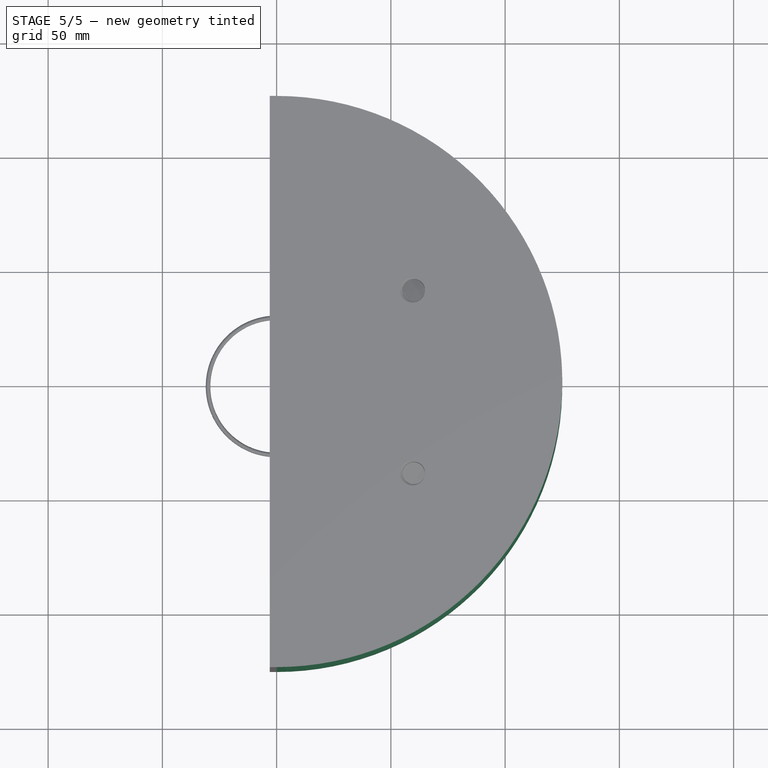
[diagram: stage 5 of 5 — top view after this stage's code; geometry added in this stage tinted green]
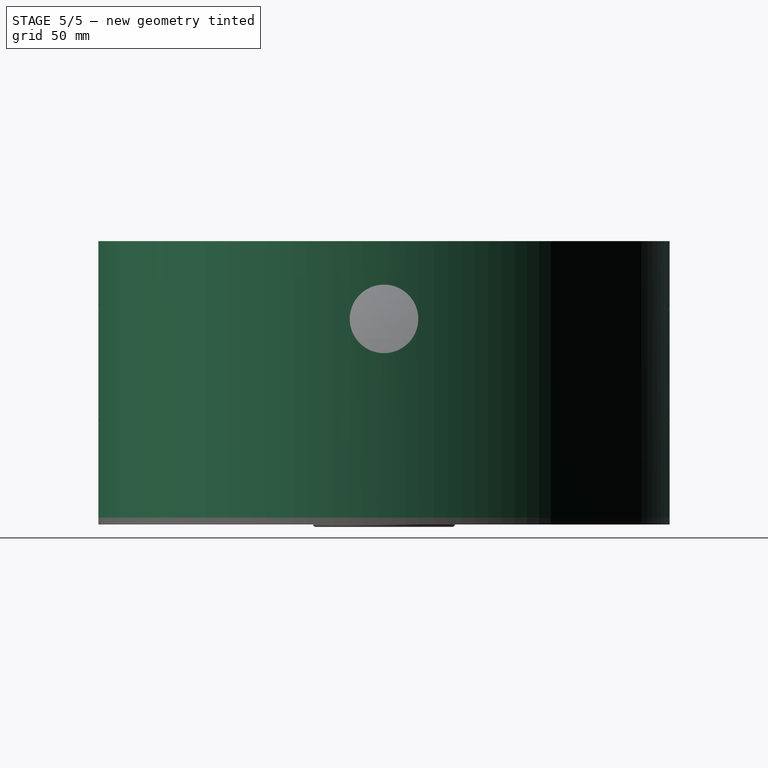
[diagram: stage 5 of 5 — right view after this stage's code; geometry added in this stage tinted green]
FEATURE [Sketcher::SketchObject] Sketch018
  AttachmentOffset = pos=(0,0,124) rot=(0,0,1;0rad)
  FullyConstrained = true
  MapMode = 5
  Placement = pos=(0,0,124) rot=(0,0,1;0rad)
  Support = -> [XY_Plane001]
  sketch-geometry (4):
    g0: ArcOfCircle CenterX=0 CenterY=0 CenterZ=0 NormalX=0 NormalY=0 NormalZ=1 AngleXU=0 Radius=122 StartAngle=4.71239 EndAngle=7.85398
    g1: ArcOfCircle CenterX=0 CenterY=0 CenterZ=0 NormalX=0 NormalY=0 NormalZ=1 AngleXU=0 Radius=125 StartAngle=4.71239 EndAngle=7.85398
    g2: LineSegment StartX=3.83e-14 StartY=125 StartZ=0 EndX=3.74e-14 EndY=122 EndZ=0
    g3: LineSegment StartX=-2.24e-14 StartY=-122 StartZ=0 EndX=-2.3e-14 EndY=-125 EndZ=0
  constraints (12):
    c: Coincident(g0,g-1)
    c: PointOnObject(g0,g-2)
    c: PointOnObject(g0,g-2)
    c: Coincident(g1,g0)
    c: PointOnObject(g1,g-2)
    c: PointOnObject(g1,g-2)
    c: Coincident(g2,g1)
    c: Coincident(g2,g0)
    c: Coincident(g3,g0)
    c: Coincident(g3,g1)
    c: Radius(g1) = 125
    c: Radius(g0) = 122
FEATURE [PartDesign::Pad] Pad006
  BaseFeature = -> Pad005
  Direction = (1,1,1)
  Length = 121
  Length2 = 100
  Profile = -> Sketch018
  Refine = true
  Reversed = true
  Type = 0
FEATURE [Sketcher::SketchObject] Sketch019
  AttachmentOffset = pos=(0,0,125) rot=(0,0,1;0rad)
  FullyConstrained = false
  MapMode = 5
  Placement = pos=(0,-125,-2.78e-14) rot=(1,0,0;1.5708rad)
  Support = -> [XZ_Plane001]
  sketch-geometry (2):
    g0: Circle CenterX=5 CenterY=95 CenterZ=0 NormalX=0 NormalY=0 NormalZ=1 AngleXU=0 Radius=1.61136
    g1: Circle CenterX=5 CenterY=45 CenterZ=0 NormalX=0 NormalY=0 NormalZ=1 AngleXU=0 Radius=1.21573
  constraints (4):
    c: DistanceX(g-1,g1) = 5
    c: DistanceY(g-1,g1) = 45
    c: DistanceY(g-1,g0) = 95
    c: DistanceX(g-1,g0) = 5
FEATURE [PartDesign::Pocket] Pocket006
  BaseFeature = -> Pad006
  Length = 5
  Length2 = 100
  Profile = -> Sketch019
  Refine = true
  Type = 0
FEATURE [PartDesign::Mirrored] Mirrored002
  BaseFeature = -> Pocket006
  MirrorPlane = -> XZ_Plane001
  Originals = -> [Pocket006]
  Refine = true
FEATURE [PartDesign::Chamfer] Chamfer
  Angle = 45
  Base = -> Mirrored002 [Edge11]
  BaseFeature = -> Mirrored002
  ChamferType = 0
  FlipDirection = false
  Refine = true
  Size = 2.5
  Size2 = 1
  SupportTransform = false
FEATURE [Sketcher::SketchObject] Sketch020
  AttachmentOffset = pos=(0,0,124) rot=(0,0,1;0rad)
  FullyConstrained = true
  MapMode = 5
  Placement = pos=(0,0,124) rot=(0,0,1;0rad)
  Support = -> [XY_Plane001]
  sketch-geometry (2):
    g0: Circle CenterX=60 CenterY=40 CenterZ=0 NormalX=0 NormalY=0 NormalZ=1 AngleXU=0 Radius=10
    g1: Circle CenterX=60 CenterY=-40 CenterZ=0 NormalX=0 NormalY=0 NormalZ=1 AngleXU=0 Radius=10
  constraints (5):
    c: Symmetric(g0,g1,g-1)
    c: DistanceY(g-1,g0) = 40
    c: Radius(g0) = 10
    c: Radius(g1) = 10
    c: DistanceX(g-1,g0) = 60
FEATURE [Sketcher::SketchObject] Sketch021
  AttachmentOffset = pos=(0,0,125) rot=(0,0,1;0rad)
  FullyConstrained = true
  MapMode = 5
  Placement = pos=(125,-2.78e-14,2.78e-14) rot=(0.57735,0.57735,0.57735;2.0944rad)
  Support = -> [YZ_Plane001]
  sketch-geometry (1):
    g0: Circle CenterX=0 CenterY=90 CenterZ=0 NormalX=0 NormalY=0 NormalZ=1 AngleXU=0 Radius=15
  constraints (3):
    c: PointOnObject(g0,g-2)
    c: Radius(g0) = 15
    c: DistanceY(g-1,g0) = 90
FEATURE [PartDesign::Pocket] Pocket008
  BaseFeature = -> Chamfer
  Length = 5
  Length2 = 100
  Profile = -> Sketch021
  Refine = true
  Type = 1
FEATURE [PartDesign::Chamfer] Chamfer001
  Angle = 45
  Base = -> Pocket008 [Edge12]
  BaseFeature = -> Pocket008
  ChamferType = 0
  FlipDirection = false
  Refine = true
  Size = 2
  Size2 = 1
  SupportTransform = false
FEATURE [PartDesign::Pad] Pad007
  BaseFeature = -> Chamfer001
  Direction = (1,1,1)
  Length = 20
  Length2 = 100
  Profile = -> Sketch020
  Refine = true
  Reversed = true
  Type = 0
FEATURE [Part::Cut] Cut  label="Cover001"
  Base = -> Body001
  Refine = true
  Tool = -> Fusion
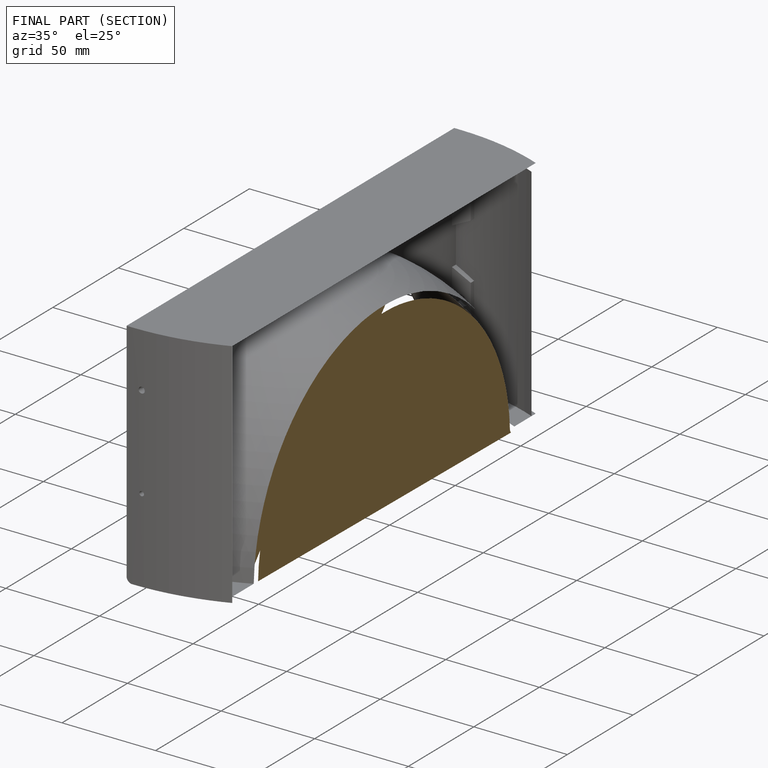
[diagram: finished part — half-section view (interior)]
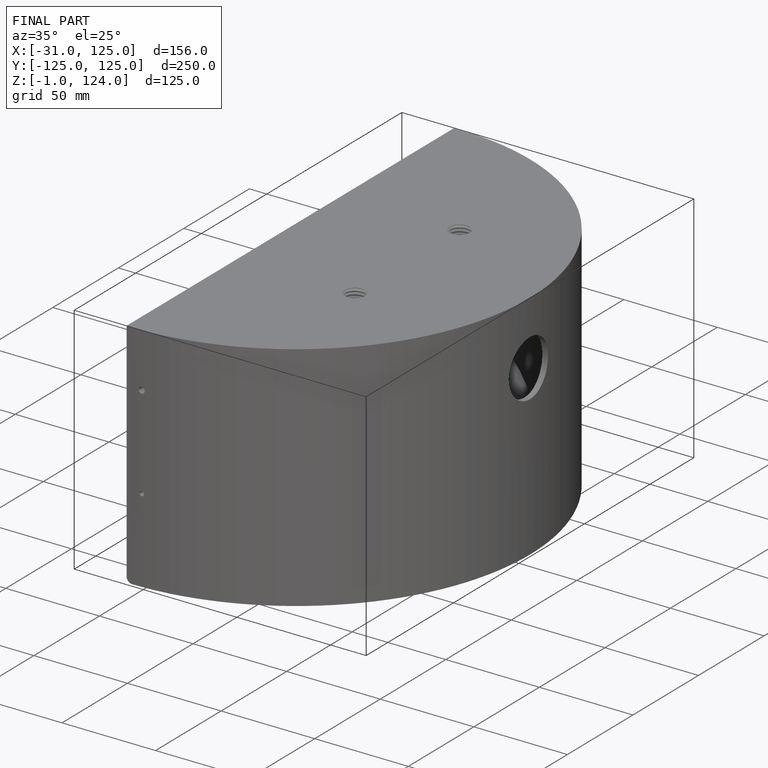
[diagram: finished part — iso view with bounding-box wireframe]
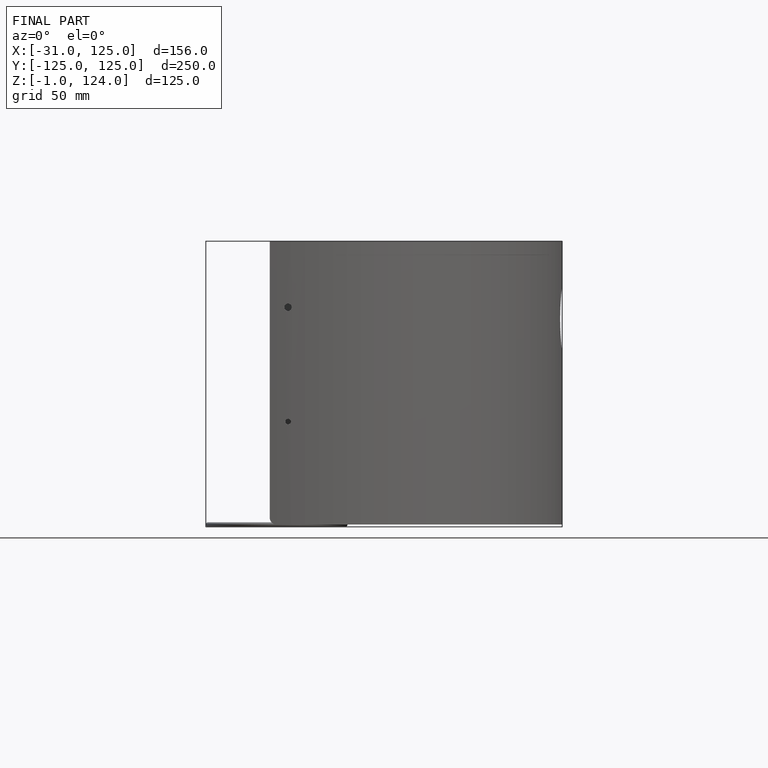
[diagram: finished part — front view with bounding-box wireframe]
